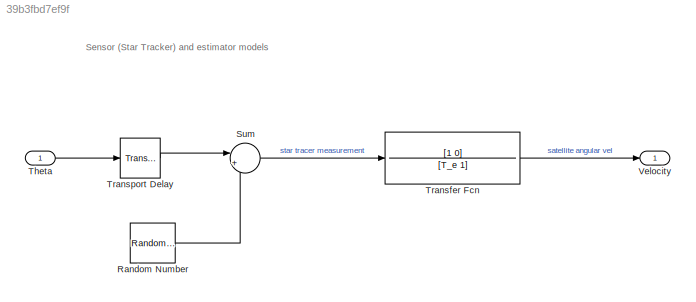
MODEL slx_39b3fbd7ef9f
KIND model
CONFIG AbsTol = auto
CONFIG EnableMultiTasking = off
CONFIG FixedStep = auto
CONFIG MaxStep = auto
CONFIG MinStep = auto
CONFIG RelTol = 1e-3
CONFIG SampleTimeConstraint = Unconstrained
CONFIG Solver = VariableStepAuto
CONFIG SolverName = VariableStepAuto
CONFIG StartTime = 0.0
CONFIG StopTime = 10.0
BLOCK [RandomNumber] Random Number
  SampleTime = 0.1
  Variance = noise
BLOCK [Sum] Sum
  IconShape = round
  InputSameDT = off
  Inputs = |++
  OutDataTypeStr = Inherit: Inherit via internal rule
  Ports = [2, 1]
  SaturateOnIntegerOverflow = off
BLOCK [Inport] Theta
  IconDisplay = Port number
BLOCK [TransferFcn] Transfer Fcn
  Denominator = [T_e 1]
  Numerator = [1 0]
BLOCK [TransportDelay] Transport Delay
  DelayTime = To_m
  Ports = [1, 1]
BLOCK [Outport] Velocity
  IconDisplay = Port number
ANNOTATION (root): Sensor (Star Tracker) and estimator models
LINE Random Number:1 -> Sum:2
LINE Sum:1 -> Transfer Fcn:1
LINE Theta:1 -> Transport Delay:1
LINE Transfer Fcn:1 -> Velocity:1
LINE Transport Delay:1 -> Sum:1
